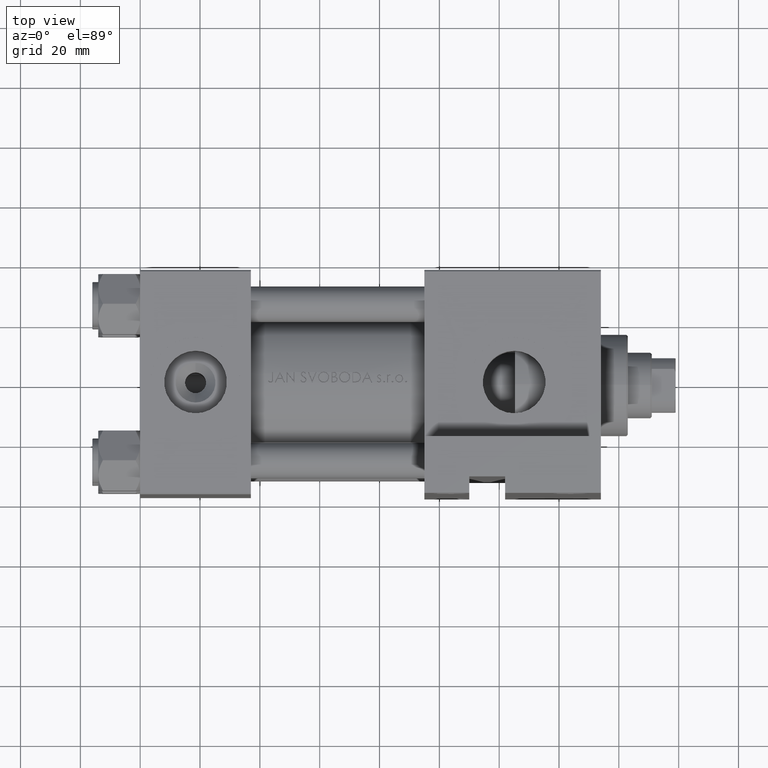
[diagram: clean part render]
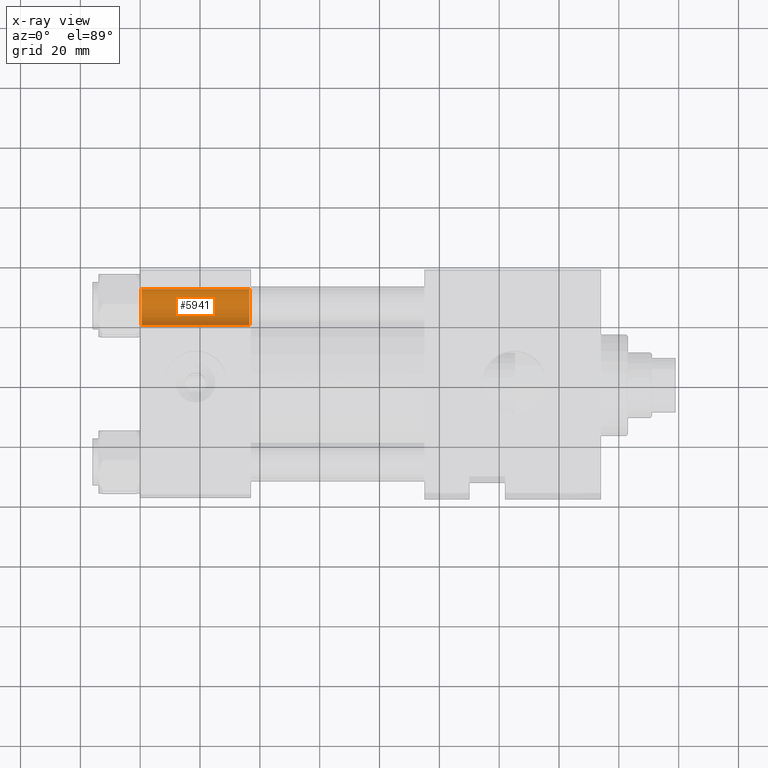
[diagram: x-ray — body ghosted, one internal face saturated and labeled with its STEP entity id]
A machine part, top view, then the same camera in x-ray: the body is ghosted and one INTERNAL B-rep face — a face not visible from any outside direction — is saturated and labeled: STEP entity #5941.
In plain terms, the highlighted cylindrical surface (edge-blend (fillet) strip) has radius 6 mm, axis along (-1, -0, 0).
Its self-contained STEP definition (entity closure, byte-faithful):
#1384 = EDGE_CURVE ( 'NONE', #23333, #2050, #12265, .T. ) ;
#2050 = VERTEX_POINT ( 'NONE', #5660 ) ;
#5590 = DIRECTION ( 'NONE',  ( -1.000000000000000000, -0.000000000000000000, -0.000000000000000000 ) ) ;
#5660 = CARTESIAN_POINT ( 'NONE',  ( 0.5000000000000213163, 26.14999999999999858, 32.15000000000001279 ) ) ;
#5941 = ADVANCED_FACE ( 'NONE', ( #17857 ), #40281, .F. ) ;
#7496 = DIRECTION ( 'NONE',  ( 0.000000000000000000, 0.000000000000000000, 1.000000000000000000 ) ) ;
#12265 = LINE ( 'NONE', #37343, #39182 ) ;
#13282 = EDGE_CURVE ( 'NONE', #20613, #35883, #38865, .T. ) ;
#15454 = CARTESIAN_POINT ( 'NONE',  ( 36.49999999999997868, 26.14999999999999858, 20.14999999999999858 ) ) ;
#17156 = CARTESIAN_POINT ( 'NONE',  ( 37.00000000000000711, 26.14999999999999858, 20.14999999999999858 ) ) ;
#17293 = DIRECTION ( 'NONE',  ( -1.000000000000000000, 0.000000000000000000, 0.000000000000000000 ) ) ;
#17403 = AXIS2_PLACEMENT_3D ( 'NONE', #31607, #34971, #42675 ) ;
#17857 = FACE_OUTER_BOUND ( 'NONE', #34056, .T. ) ;
#18618 = CIRCLE ( 'NONE', #22484, 6.000000000000008882 ) ;
#19774 = AXIS2_PLACEMENT_3D ( 'NONE', #28477, #43660, #7496 ) ;
#20613 = VERTEX_POINT ( 'NONE', #15454 ) ;
#20992 = ORIENTED_EDGE ( 'NONE', *, *, #25143, .T. ) ;
#22460 = ORIENTED_EDGE ( 'NONE', *, *, #1384, .T. ) ;
#22484 = AXIS2_PLACEMENT_3D ( 'NONE', #31776, #17293, #47429 ) ;
#23333 = VERTEX_POINT ( 'NONE', #26276 ) ;
#25143 = EDGE_CURVE ( 'NONE', #2050, #35883, #18618, .T. ) ;
#25892 = CIRCLE ( 'NONE', #17403, 6.000000000000008882 ) ;
#26276 = CARTESIAN_POINT ( 'NONE',  ( 36.49999999999997868, 26.14999999999999858, 32.15000000000001279 ) ) ;
#28477 = CARTESIAN_POINT ( 'NONE',  ( 37.00000000000000711, 26.14999999999999858, 26.15000000000000213 ) ) ;
#29723 = VECTOR ( 'NONE', #5590, 1000.000000000000000 ) ;
#31607 = CARTESIAN_POINT ( 'NONE',  ( 36.49999999999997868, 26.14999999999999858, 26.15000000000000213 ) ) ;
#31776 = CARTESIAN_POINT ( 'NONE',  ( 0.5000000000000213163, 26.14999999999999858, 26.15000000000000213 ) ) ;
#34056 = EDGE_LOOP ( 'NONE', ( #40105, #40788, #22460, #20992 ) ) ;
#34971 = DIRECTION ( 'NONE',  ( 1.000000000000000000, -0.000000000000000000, -0.000000000000000000 ) ) ;
#35883 = VERTEX_POINT ( 'NONE', #46802 ) ;
#37343 = CARTESIAN_POINT ( 'NONE',  ( 37.00000000000000711, 26.14999999999999858, 32.15000000000001279 ) ) ;
#38052 = DIRECTION ( 'NONE',  ( -1.000000000000000000, -0.000000000000000000, -0.000000000000000000 ) ) ;
#38416 = EDGE_CURVE ( 'NONE', #20613, #23333, #25892, .T. ) ;
#38865 = LINE ( 'NONE', #17156, #29723 ) ;
#39182 = VECTOR ( 'NONE', #38052, 1000.000000000000000 ) ;
#40105 = ORIENTED_EDGE ( 'NONE', *, *, #13282, .F. ) ;
#40281 = CYLINDRICAL_SURFACE ( 'NONE', #19774, 6.000000000000008882 ) ;
#40788 = ORIENTED_EDGE ( 'NONE', *, *, #38416, .T. ) ;
#42675 = DIRECTION ( 'NONE',  ( 0.000000000000000000, 0.000000000000000000, 1.000000000000000000 ) ) ;
#43660 = DIRECTION ( 'NONE',  ( -1.000000000000000000, -0.000000000000000000, -0.000000000000000000 ) ) ;
#46802 = CARTESIAN_POINT ( 'NONE',  ( 0.5000000000000213163, 26.14999999999999858, 20.14999999999999858 ) ) ;
#47429 = DIRECTION ( 'NONE',  ( 0.000000000000000000, 0.000000000000000000, 1.000000000000000000 ) ) ;